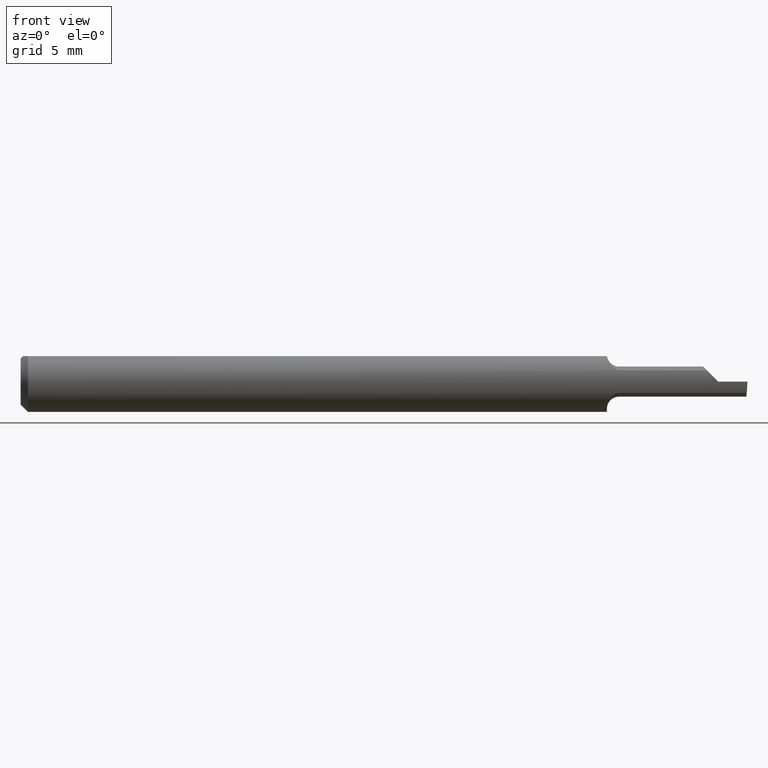
[diagram: clean part render]
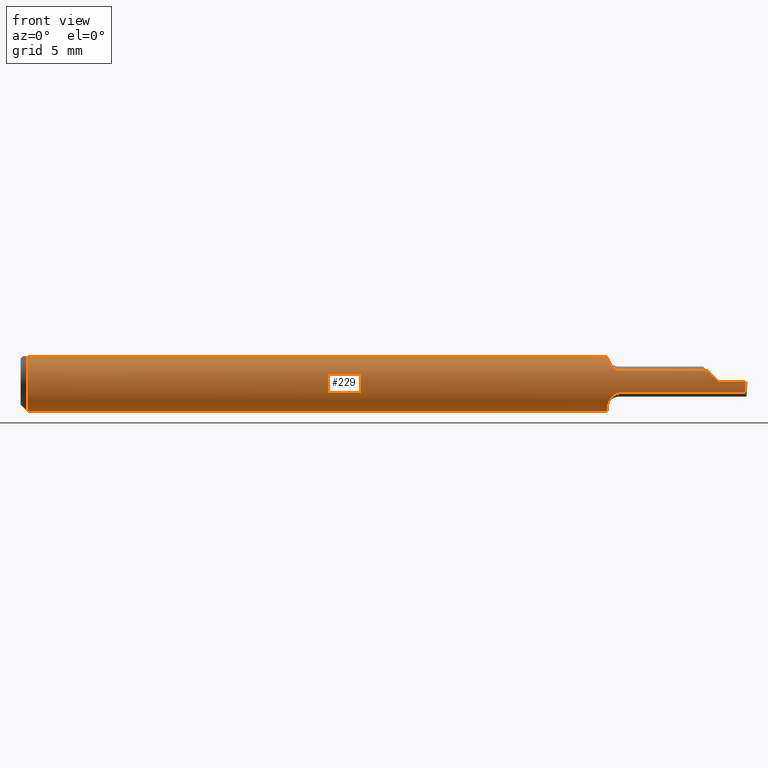
[diagram: same view with one face highlighted and labeled with its STEP entity id]
A machine part, front view. The second image highlights one B-rep face of the part: STEP entity #229.
In plain terms, the highlighted cylindrical surface (edge-blend (fillet) strip) has radius 1.5875 mm, axis along (-1, -0, -0).
Its self-contained STEP definition (entity closure, byte-faithful):
#9 = CARTESIAN_POINT ( 'NONE',  ( 1.496890555848597870, -0.06249997390100388295, -5.711719386470728930E-05 ) ) ;
#33 = B_SPLINE_CURVE_WITH_KNOTS ( 'NONE', 3,
 ( #606, #706, #646, #153, #155, #98, #159, #382 ),
 .UNSPECIFIED., .F., .F.,
 ( 4, 2, 2, 4 ),
 ( 1.966728711740052493E-07, 0.0002849675137165564470, 0.0005697383545619388086, 0.001139280036252703424 ),
 .UNSPECIFIED. ) ;
#34 = CARTESIAN_POINT ( 'NONE',  ( 1.210730677800976984, -0.03749999999999999167, -0.05000000000000000278 ) ) ;
#36 = EDGE_CURVE ( 'NONE', #390, #470, #84, .T. ) ;
#41 = CIRCLE ( 'NONE', #338, 0.06250000000000000000 ) ;
#45 =( BOUNDED_CURVE ( )  B_SPLINE_CURVE ( 3, ( #663, #608, #110, #328 ),
 .UNSPECIFIED., .F., .F. ) 
 B_SPLINE_CURVE_WITH_KNOTS ( ( 4, 4 ),
 ( 0.2627802246738042968, 0.6427944074216366266 ),
 .UNSPECIFIED. ) 
 CURVE ( )  GEOMETRIC_REPRESENTATION_ITEM ( )  RATIONAL_B_SPLINE_CURVE ( ( 1.000000000000000000, 0.9880019305490248538, 0.9880019305490248538, 1.000000000000000000 ) ) 
 REPRESENTATION_ITEM ( '' )  );
#58 = CARTESIAN_POINT ( 'NONE',  ( 1.211276458122897637, -0.04044349299612768484, 0.04779238025290422770 ) ) ;
#60 = EDGE_CURVE ( 'NONE', #163, #62, #149, .T. ) ;
#62 = VERTEX_POINT ( 'NONE', #531 ) ;
#66 = ORIENTED_EDGE ( 'NONE', *, *, #166, .F. ) ;
#69 = CARTESIAN_POINT ( 'NONE',  ( 1.440000000000000169, -0.06250000000000000000, 7.469896857675718968E-18 ) ) ;
#70 = CARTESIAN_POINT ( 'NONE',  ( 1.214533395136242033, -0.04798856493085172648, 0.04019628732337204163 ) ) ;
#71 = VERTEX_POINT ( 'NONE', #34 ) ;
#73 = LINE ( 'NONE', #123, #710 ) ;
#75 = EDGE_CURVE ( 'NONE', #470, #163, #326, .T. ) ;
#84 = LINE ( 'NONE', #292, #485 ) ;
#92 = CARTESIAN_POINT ( 'NONE',  ( 1.416763614738949295, -0.05802000000000001600, 0.02323638526105122060 ) ) ;
#93 = CARTESIAN_POINT ( 'NONE',  ( 0.01499999999999999944, 0.000000000000000000, 0.000000000000000000 ) ) ;
#96 = LINE ( 'NONE', #645, #600 ) ;
#97 = EDGE_CURVE ( 'NONE', #504, #547, #203, .T. ) ;
#98 = CARTESIAN_POINT ( 'NONE',  ( 1.214146460857340459, -0.04830100695595842403, -0.04017699635729578972 ) ) ;
#99 = ORIENTED_EDGE ( 'NONE', *, *, #160, .T. ) ;
#104 = EDGE_CURVE ( 'NONE', #62, #462, #96, .T. ) ;
#108 = CARTESIAN_POINT ( 'NONE',  ( 1.496439659513480569, -0.05802000000000000213, -0.02323638526105124835 ) ) ;
#109 = CARTESIAN_POINT ( 'NONE',  ( 0.01499999999999999944, 0.000000000000000000, -0.06250000000000000000 ) ) ;
#110 = CARTESIAN_POINT ( 'NONE',  ( 1.496682112777580453, -0.06249269490856873555, -0.008022088972760511166 ) ) ;
#116 = DIRECTION ( 'NONE',  ( -1.000000000000000000, -0.000000000000000000, -0.000000000000000000 ) ) ;
#117 = ORIENTED_EDGE ( 'NONE', *, *, #75, .F. ) ;
#119 = DIRECTION ( 'NONE',  ( 0.02616100201822768243, -0.0009135623211514329539, 0.9996573249755575929 ) ) ;
#123 = CARTESIAN_POINT ( 'NONE',  ( 1.495584001414323128, -0.06245432188394240552, -0.04998286624877785328 ) ) ;
#128 = CARTESIAN_POINT ( 'NONE',  ( 1.210730677800976984, -0.03749999999999999861, 0.05000000000000000278 ) ) ;
#144 = EDGE_CURVE ( 'NONE', #547, #71, #33, .T. ) ;
#149 = CIRCLE ( 'NONE', #590, 0.06250000000000000000 ) ;
#153 = CARTESIAN_POINT ( 'NONE',  ( 1.222133919495981269, -0.05512334192814493522, -0.02956107256455840077 ) ) ;
#155 = CARTESIAN_POINT ( 'NONE',  ( 1.219857446812235624, -0.05365459147834109738, -0.03221283735729432718 ) ) ;
#157 = VECTOR ( 'NONE', #116, 39.37007874015748143 ) ;
#159 = CARTESIAN_POINT ( 'NONE',  ( 1.211822973508685619, -0.04339095032599648433, -0.04558178725550265931 ) ) ;
#160 = EDGE_CURVE ( 'NONE', #657, #425, #597, .T. ) ;
#163 = VERTEX_POINT ( 'NONE', #109 ) ;
#166 = EDGE_CURVE ( 'NONE', #558, #390, #41, .T. ) ;
#178 = CARTESIAN_POINT ( 'NONE',  ( 1.210516057201464379, -0.03634251189330765103, 0.05086811608001926693 ) ) ;
#195 = CARTESIAN_POINT ( 'NONE',  ( 1.235000000000000098, -0.05802000000000001600, 0.02323638526105123100 ) ) ;
#196 = DIRECTION ( 'NONE',  ( 0.000000000000000000, 0.000000000000000000, 1.000000000000000000 ) ) ;
#203 = LINE ( 'NONE', #649, #497 ) ;
#214 = CARTESIAN_POINT ( 'NONE',  ( 1.210730677800976984, -0.03749999999999999167, -0.05000000000000000278 ) ) ;
#217 = CARTESIAN_POINT ( 'NONE',  ( 1.209999999999999964, -0.02902000000000000066, -0.05535421935137375266 ) ) ;
#220 = VECTOR ( 'NONE', #225, 39.37007874015748143 ) ;
#225 = DIRECTION ( 'NONE',  ( 1.000000000000000000, 0.000000000000000000, 0.000000000000000000 ) ) ;
#226 = ORIENTED_EDGE ( 'NONE', *, *, #60, .F. ) ;
#227 = EDGE_CURVE ( 'NONE', #540, #657, #503, .T. ) ;
#229 = ADVANCED_FACE ( 'NONE', ( #402 ), #230, .T. ) ;
#230 = CYLINDRICAL_SURFACE ( 'NONE', #562, 0.06250000000000000000 ) ;
#246 = EDGE_CURVE ( 'NONE', #504, #252, #45, .T. ) ;
#252 = VERTEX_POINT ( 'NONE', #9 ) ;
#257 = CARTESIAN_POINT ( 'NONE',  ( 1.210000000000000187, 0.000000000000000000, 0.000000000000000000 ) ) ;
#258 = EDGE_CURVE ( 'NONE', #462, #664, #343, .T. ) ;
#263 = DIRECTION ( 'NONE',  ( 0.000000000000000000, 0.000000000000000000, 1.000000000000000000 ) ) ;
#271 = CARTESIAN_POINT ( 'NONE',  ( 1.219858330071591723, -0.05365673730107053258, 0.03221049271007426357 ) ) ;
#278 = DIRECTION ( 'NONE',  ( 0.000000000000000000, 0.000000000000000000, 1.000000000000000000 ) ) ;
#280 = EDGE_CURVE ( 'NONE', #252, #540, #73, .T. ) ;
#284 = CARTESIAN_POINT ( 'NONE',  ( 1.216038272854087943, -0.05007310510346348054, 0.03753991800363104536 ) ) ;
#287 = LINE ( 'NONE', #444, #220 ) ;
#289 = EDGE_CURVE ( 'NONE', #394, #425, #287, .T. ) ;
#292 = CARTESIAN_POINT ( 'NONE',  ( 0.000000000000000000, 0.03391164991562636150, 0.05249999999999998418 ) ) ;
#301 = CARTESIAN_POINT ( 'NONE',  ( 0.01499999999999999771, 0.03391164991562633374, 0.05250000000000000500 ) ) ;
#302 = ORIENTED_EDGE ( 'NONE', *, *, #280, .T. ) ;
#306 = DIRECTION ( 'NONE',  ( -1.000000000000000000, -0.000000000000000000, -0.000000000000000000 ) ) ;
#307 = B_SPLINE_CURVE_WITH_KNOTS ( 'NONE', 3,
 ( #670, #58, #565, #70, #284, #271, #500, #447, #660, #195 ),
 .UNSPECIFIED., .F., .F.,
 ( 4, 2, 2, 2, 4 ),
 ( 0.0001117245180919403103, 0.0003949083380089214376, 0.0006780921579259025379, 0.0009612759778428836381, 0.001244459797759864738 ),
 .UNSPECIFIED. ) ;
#326 = CIRCLE ( 'NONE', #699, 0.06250000000000000000 ) ;
#328 = CARTESIAN_POINT ( 'NONE',  ( 1.496890555848597870, -0.06249997390100388295, -5.711719386470728930E-05 ) ) ;
#330 = CARTESIAN_POINT ( 'NONE',  ( 1.209999999999999964, -0.03199811029573849247, -0.05379291541113154218 ) ) ;
#332 = CARTESIAN_POINT ( 'NONE',  ( 0.000000000000000000, 0.000000000000000000, 0.000000000000000000 ) ) ;
#333 = ORIENTED_EDGE ( 'NONE', *, *, #594, .F. ) ;
#335 = EDGE_CURVE ( 'NONE', #664, #394, #307, .T. ) ;
#338 = AXIS2_PLACEMENT_3D ( 'NONE', #257, #433, #377 ) ;
#343 = B_SPLINE_CURVE_WITH_KNOTS ( 'NONE', 3,
 ( #615, #623, #178, #128 ),
 .UNSPECIFIED., .F., .F.,
 ( 4, 4 ),
 ( 3.663786321824667157E-07, 0.0001117245180919403103 ),
 .UNSPECIFIED. ) ;
#346 = ORIENTED_EDGE ( 'NONE', *, *, #289, .F. ) ;
#349 = CARTESIAN_POINT ( 'NONE',  ( 1.210000000000000187, 0.03391164991562634068, 0.05250000000000000500 ) ) ;
#356 = ORIENTED_EDGE ( 'NONE', *, *, #97, .F. ) ;
#371 = DIRECTION ( 'NONE',  ( -1.000000000000000000, -0.000000000000000000, -0.000000000000000000 ) ) ;
#377 = DIRECTION ( 'NONE',  ( 0.000000000000000000, 0.000000000000000000, -1.000000000000000000 ) ) ;
#382 = CARTESIAN_POINT ( 'NONE',  ( 1.210730677800976984, -0.03749999999999999167, -0.05000000000000000278 ) ) ;
#389 = DIRECTION ( 'NONE',  ( -1.000000000000000000, -0.000000000000000000, -0.000000000000000000 ) ) ;
#390 = VERTEX_POINT ( 'NONE', #349 ) ;
#393 = CARTESIAN_POINT ( 'NONE',  ( 2.324973294346407873E-32, -0.06250000000000000000, 1.867474214418933224E-16 ) ) ;
#394 = VERTEX_POINT ( 'NONE', #479 ) ;
#402 = FACE_OUTER_BOUND ( 'NONE', #574, .T. ) ;
#403 = ORIENTED_EDGE ( 'NONE', *, *, #144, .F. ) ;
#425 = VERTEX_POINT ( 'NONE', #92 ) ;
#432 = DIRECTION ( 'NONE',  ( 1.000000000000000000, 0.000000000000000000, 0.000000000000000000 ) ) ;
#433 = DIRECTION ( 'NONE',  ( 1.000000000000000000, 0.000000000000000000, 0.000000000000000000 ) ) ;
#434 = B_SPLINE_CURVE_WITH_KNOTS ( 'NONE', 3,
 ( #214, #443, #330, #556 ),
 .UNSPECIFIED., .F., .F.,
 ( 4, 4 ),
 ( 0.001139280036252703424, 0.001394915048278311297 ),
 .UNSPECIFIED. ) ;
#437 = CARTESIAN_POINT ( 'NONE',  ( 1.424175658816638546, -0.06098844384283146070, 0.01582434118336195975 ) ) ;
#443 = CARTESIAN_POINT ( 'NONE',  ( 1.210240408106322274, -0.03485588595911404131, -0.05198308553066447596 ) ) ;
#444 = CARTESIAN_POINT ( 'NONE',  ( 1.344500000000000028, -0.05802000000000000213, 0.02323638526105124835 ) ) ;
#447 = CARTESIAN_POINT ( 'NONE',  ( 1.227745188404311572, -0.05730285598938314462, 0.02507717503036201515 ) ) ;
#462 = VERTEX_POINT ( 'NONE', #521 ) ;
#470 = VERTEX_POINT ( 'NONE', #301 ) ;
#479 = CARTESIAN_POINT ( 'NONE',  ( 1.235000000000000098, -0.05802000000000001600, 0.02323638526105123100 ) ) ;
#482 = CARTESIAN_POINT ( 'NONE',  ( 0.01499999999999999944, 0.000000000000000000, 0.000000000000000000 ) ) ;
#485 = VECTOR ( 'NONE', #641, 39.37007874015748143 ) ;
#489 = CARTESIAN_POINT ( 'NONE',  ( 1.440000000000000169, -0.06250000000000000000, 7.469896857675718968E-18 ) ) ;
#495 = DIRECTION ( 'NONE',  ( -1.000000000000000000, -0.000000000000000000, -0.000000000000000000 ) ) ;
#497 = VECTOR ( 'NONE', #495, 39.37007874015748143 ) ;
#500 = CARTESIAN_POINT ( 'NONE',  ( 1.222125360129863836, -0.05512021181523650559, 0.02956762184361221707 ) ) ;
#503 = LINE ( 'NONE', #393, #157 ) ;
#504 = VERTEX_POINT ( 'NONE', #108 ) ;
#521 = CARTESIAN_POINT ( 'NONE',  ( 1.210229202404335291, -0.03391164991562639619, 0.05250000000000000500 ) ) ;
#531 = CARTESIAN_POINT ( 'NONE',  ( 0.01499999999999999944, -0.03391164991562636150, 0.05249999999999998418 ) ) ;
#540 = VERTEX_POINT ( 'NONE', #553 ) ;
#547 = VERTEX_POINT ( 'NONE', #611 ) ;
#553 = CARTESIAN_POINT ( 'NONE',  ( 1.496892051515234412, -0.06249999999999996531, -4.074989739627355278E-18 ) ) ;
#556 = CARTESIAN_POINT ( 'NONE',  ( 1.209999999999999964, -0.02902000000000000066, -0.05535421935137375266 ) ) ;
#558 = VERTEX_POINT ( 'NONE', #217 ) ;
#562 = AXIS2_PLACEMENT_3D ( 'NONE', #332, #389, #278 ) ;
#565 = CARTESIAN_POINT ( 'NONE',  ( 1.212141915052869834, -0.04317098555031172180, 0.04533111387689952448 ) ) ;
#571 = ORIENTED_EDGE ( 'NONE', *, *, #104, .F. ) ;
#574 = EDGE_LOOP ( 'NONE', ( #580, #302, #695, #99, #346, #707, #607, #571, #226, #117, #627, #66, #333, #403, #356 ) ) ;
#580 = ORIENTED_EDGE ( 'NONE', *, *, #246, .T. ) ;
#590 = AXIS2_PLACEMENT_3D ( 'NONE', #93, #306, #196 ) ;
#594 = EDGE_CURVE ( 'NONE', #71, #558, #434, .T. ) ;
#597 =( BOUNDED_CURVE ( )  B_SPLINE_CURVE ( 3, ( #489, #703, #437, #653 ),
 .UNSPECIFIED., .F., .F. ) 
 B_SPLINE_CURVE_WITH_KNOTS ( ( 4, 4 ),
 ( 4.712388980384689674, 5.093317038361561799 ),
 .UNSPECIFIED. ) 
 CURVE ( )  GEOMETRIC_REPRESENTATION_ITEM ( )  RATIONAL_B_SPLINE_CURVE ( ( 1.000000000000000000, 0.9879443289296153674, 0.9879443289296153674, 1.000000000000000000 ) ) 
 REPRESENTATION_ITEM ( '' )  );
#600 = VECTOR ( 'NONE', #432, 39.37007874015748143 ) ;
#606 = CARTESIAN_POINT ( 'NONE',  ( 1.235000000000000098, -0.05801999999999999519, -0.02323638526105125182 ) ) ;
#607 = ORIENTED_EDGE ( 'NONE', *, *, #258, .F. ) ;
#608 = CARTESIAN_POINT ( 'NONE',  ( 1.496529988805222811, -0.06098123568212963225, -0.01584233957163198175 ) ) ;
#611 = CARTESIAN_POINT ( 'NONE',  ( 1.235000000000000098, -0.05801999999999999519, -0.02323638526105125182 ) ) ;
#615 = CARTESIAN_POINT ( 'NONE',  ( 1.210229202404335291, -0.03391164991562639619, 0.05250000000000000500 ) ) ;
#623 = CARTESIAN_POINT ( 'NONE',  ( 1.210349223843431687, -0.03514686346443995912, 0.05170213086783988915 ) ) ;
#627 = ORIENTED_EDGE ( 'NONE', *, *, #36, .F. ) ;
#641 = DIRECTION ( 'NONE',  ( -1.000000000000000000, -0.000000000000000000, -0.000000000000000000 ) ) ;
#645 = CARTESIAN_POINT ( 'NONE',  ( 0.000000000000000000, -0.03391164991562636150, 0.05249999999999998418 ) ) ;
#646 = CARTESIAN_POINT ( 'NONE',  ( 1.227733921199932965, -0.05729867410502238051, -0.02508588811066304880 ) ) ;
#649 = CARTESIAN_POINT ( 'NONE',  ( 1.344500000000000028, -0.05802000000000000213, -0.02323638526105124835 ) ) ;
#653 = CARTESIAN_POINT ( 'NONE',  ( 1.416763614738949295, -0.05802000000000001600, 0.02323638526105122060 ) ) ;
#657 = VERTEX_POINT ( 'NONE', #69 ) ;
#660 = CARTESIAN_POINT ( 'NONE',  ( 1.231210029592592292, -0.05802000000002823649, 0.02323638526098091572 ) ) ;
#663 = CARTESIAN_POINT ( 'NONE',  ( 1.496439659513480569, -0.05802000000000000213, -0.02323638526105124835 ) ) ;
#664 = VERTEX_POINT ( 'NONE', #669 ) ;
#669 = CARTESIAN_POINT ( 'NONE',  ( 1.210730677800976984, -0.03749999999999999861, 0.05000000000000000278 ) ) ;
#670 = CARTESIAN_POINT ( 'NONE',  ( 1.210730677800976984, -0.03749999999999999861, 0.05000000000000000278 ) ) ;
#695 = ORIENTED_EDGE ( 'NONE', *, *, #227, .T. ) ;
#699 = AXIS2_PLACEMENT_3D ( 'NONE', #482, #371, #263 ) ;
#703 = CARTESIAN_POINT ( 'NONE',  ( 1.432015636765674671, -0.06250000000000001388, 0.007984363234325598385 ) ) ;
#706 = CARTESIAN_POINT ( 'NONE',  ( 1.231199873549931212, -0.05802000000000001600, -0.02323638526105123447 ) ) ;
#707 = ORIENTED_EDGE ( 'NONE', *, *, #335, .F. ) ;
#710 = VECTOR ( 'NONE', #119, 39.37007874015748854 ) ;